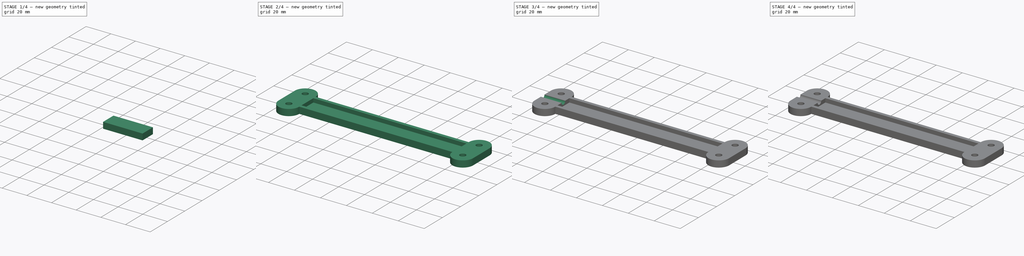
[diagram: build sequence overview — one tinted view per stage of 4, left to right]
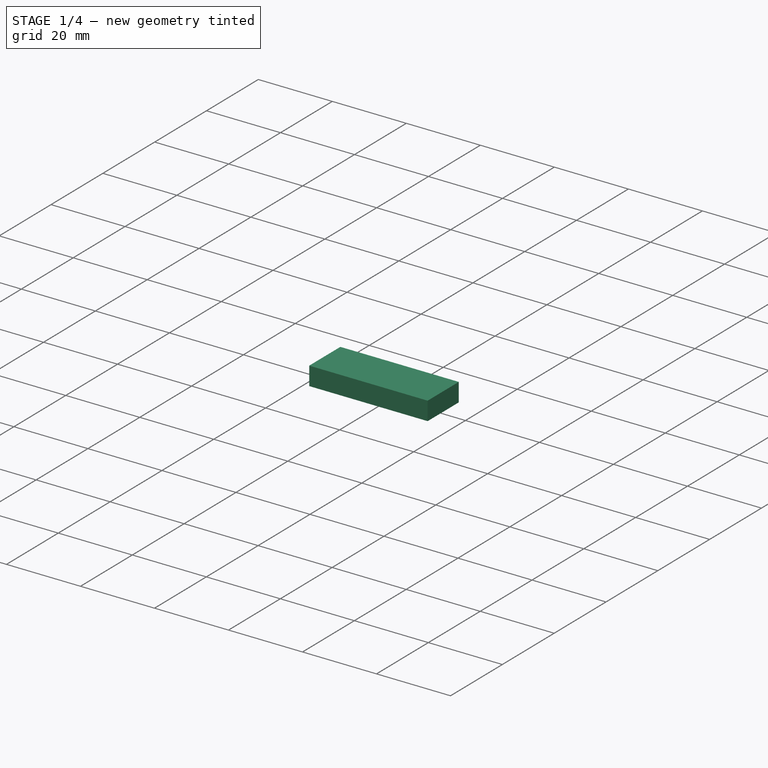
[diagram: stage 1 of 4 — iso view after this stage's code; geometry added in this stage tinted green]
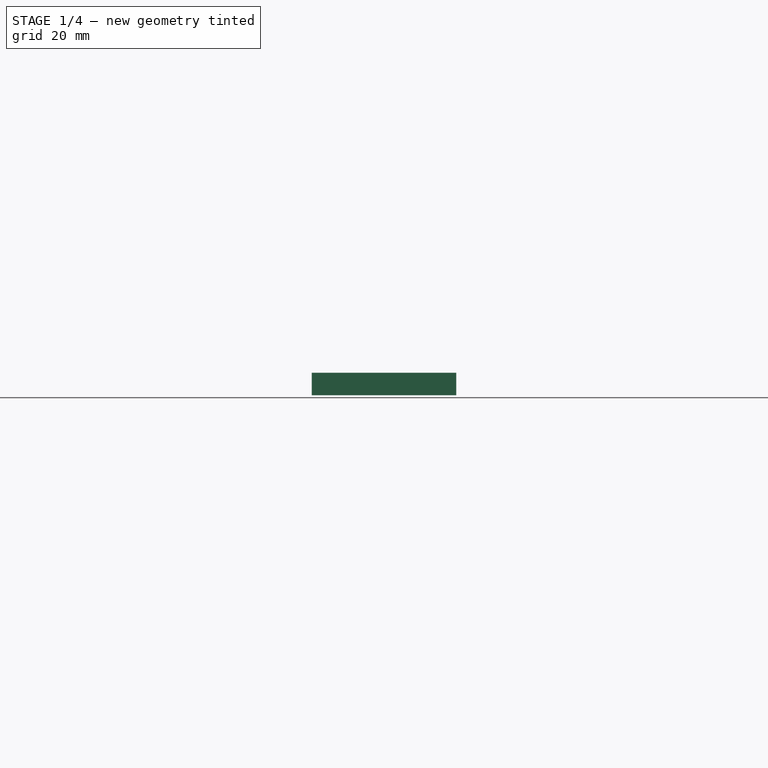
[diagram: stage 1 of 4 — front view after this stage's code; geometry added in this stage tinted green]
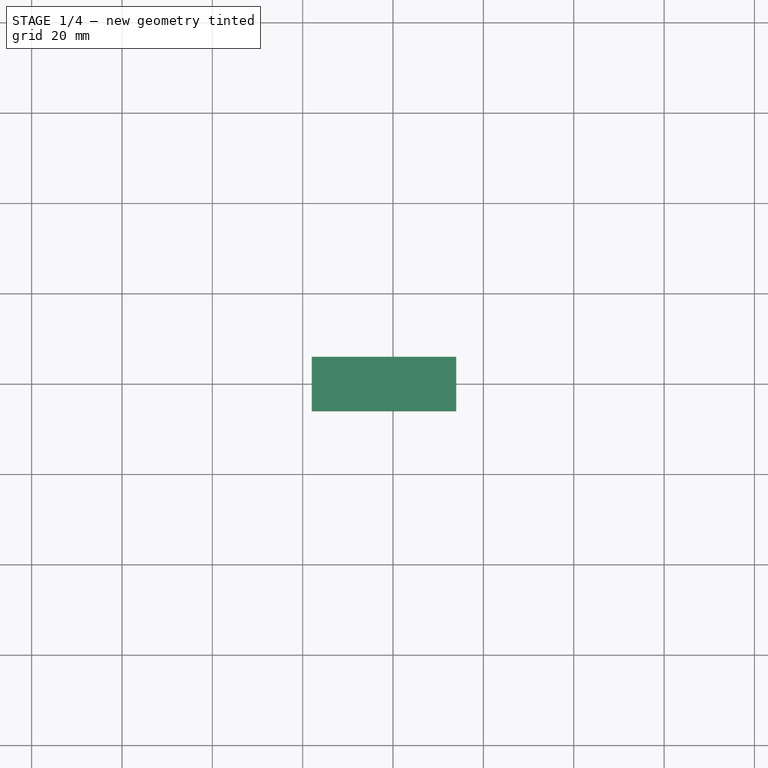
[diagram: stage 1 of 4 — top view after this stage's code; geometry added in this stage tinted green]
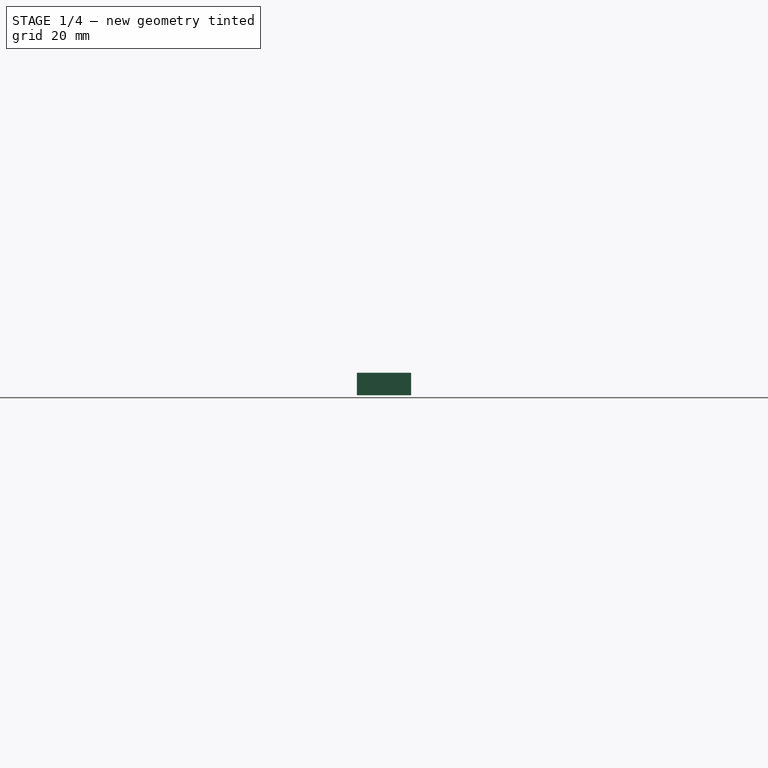
[diagram: stage 1 of 4 — right view after this stage's code; geometry added in this stage tinted green]
FCSTD DOCUMENT  (FreeCAD 0.21R33668 +26 (Git))
Label: presbiLED
License: All rights reserved
LicenseURL: http://en.wikipedia.org/wiki/All_rights_reserved
objects: Sketcher::SketchObject×6, PartDesign::Body×5, PartDesign::Pad×3, PartDesign::SubShapeBinder×3, PartDesign::Pocket×3, PartDesign::FeatureBase×2, PartDesign::Chamfer×1
note: 30 computed .brp shape members not serialized (recipe doc carries the construction recipe); baked Part::Feature solids carry a one-line shape summary decoded from their .brp

FEATURE [Sketcher::SketchObject] Sketch
  FullyConstrained = true
  MapMode = 5
  Support = -> [XY_Plane]
  sketch-geometry (4):
    g0: LineSegment StartX=-36 StartY=6 StartZ=0 EndX=36 EndY=6 EndZ=0
    g1: LineSegment StartX=36 StartY=6 StartZ=0 EndX=36 EndY=-6 EndZ=0
    g2: LineSegment StartX=36 StartY=-6 StartZ=0 EndX=-36 EndY=-6 EndZ=0
    g3: LineSegment StartX=-36 StartY=-6 StartZ=0 EndX=-36 EndY=6 EndZ=0
  constraints (11):
    c: Coincident(g0,g1)
    c: Coincident(g1,g2)
    c: Coincident(g2,g3)
    c: Coincident(g3,g0)
    c: Horizontal(g0)
    c: Horizontal(g2)
    c: Vertical(g1)
    c: Vertical(g3)
    c: DistanceY(g1,g1) = 12
    c: DistanceX(g2,g2) = 72
    c: Symmetric(g1,g0,g-1)
FEATURE [PartDesign::Pad] Pad
  Direction = (0,0,1)
  Length = 2
  Length2 = 10
  Profile = -> Sketch
  ReferenceAxis = -> Sketch [N_Axis]
  Type = 0
FEATURE [PartDesign::Body] Body  label="LED strip"
  Group = -> [Sketch,Pad]
  Origin = -> Origin
  Placement = pos=(0,0,2) rot=(0,0,1;0rad)
  Tip = -> Pad
FEATURE [PartDesign::SubShapeBinder] Binder
  BindCopyOnChange = 0
  BindMode = 0
  ClaimChildren = false
  Context = -> Body001 [Binder.]
  Fuse = false
  MakeFace = true
  OffsetFill = false
  OffsetIntersection = false
  OffsetJoinType = 0
  OffsetOpenResult = false
  PartialLoad = false
  Relative = true
  Support = -> [Body[Pad.Face6]]
  _Version = 2
FEATURE [Sketcher::SketchObject] Sketch001
  ExternalGeometry = -> [Binder]
  FullyConstrained = true
  MapMode = 5
  Support = -> [XY_Plane001]
  sketch-geometry (4):
    g0: LineSegment StartX=-46 StartY=6 StartZ=0 EndX=-78 EndY=6 EndZ=0
    g1: LineSegment StartX=-78 StartY=6 StartZ=0 EndX=-78 EndY=-6 EndZ=0
    g2: LineSegment StartX=-78 StartY=-6 StartZ=0 EndX=-46 EndY=-6 EndZ=0
    g3: LineSegment StartX=-46 StartY=-6 StartZ=0 EndX=-46 EndY=6 EndZ=0
  constraints (12):
    c: Coincident(g0,g1)
    c: Coincident(g1,g2)
    c: Coincident(g2,g3)
    c: Coincident(g3,g0)
    c: Horizontal(g0)
    c: Horizontal(g2)
    c: Vertical(g1)
    c: Vertical(g3)
    c: Horizontal(g0,g-3)
    c: Horizontal(g2,g-3)
    c: DistanceX(g2,g2) = 32
    c: DistanceX(g0,g-3) = 10
FEATURE [PartDesign::Pad] Pad001
  Direction = (0,0,1)
  Length = 5
  Length2 = 10
  Profile = -> Sketch001
  ReferenceAxis = -> Sketch001 [N_Axis]
  Type = 0
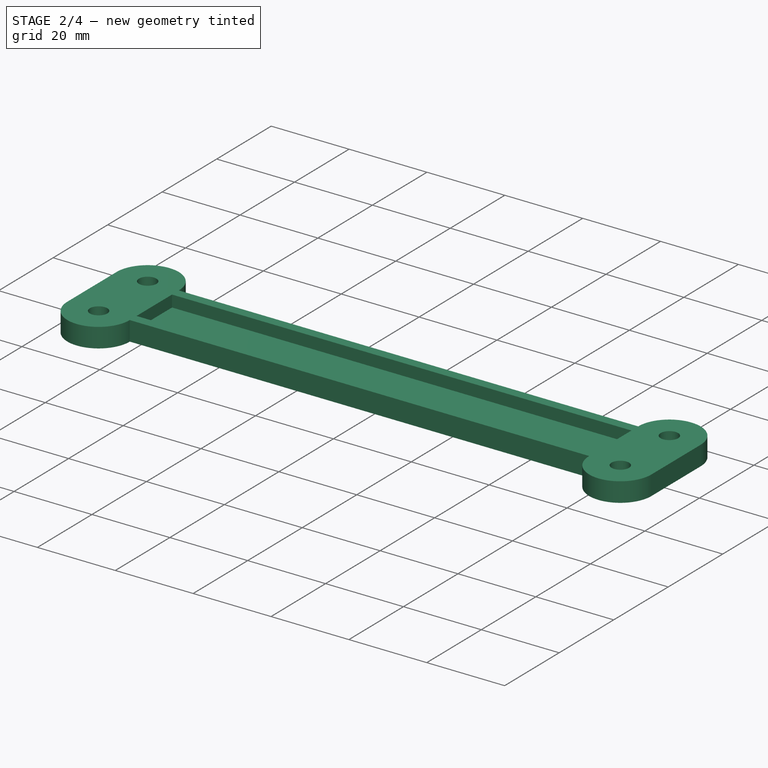
[diagram: stage 2 of 4 — iso view after this stage's code; geometry added in this stage tinted green]
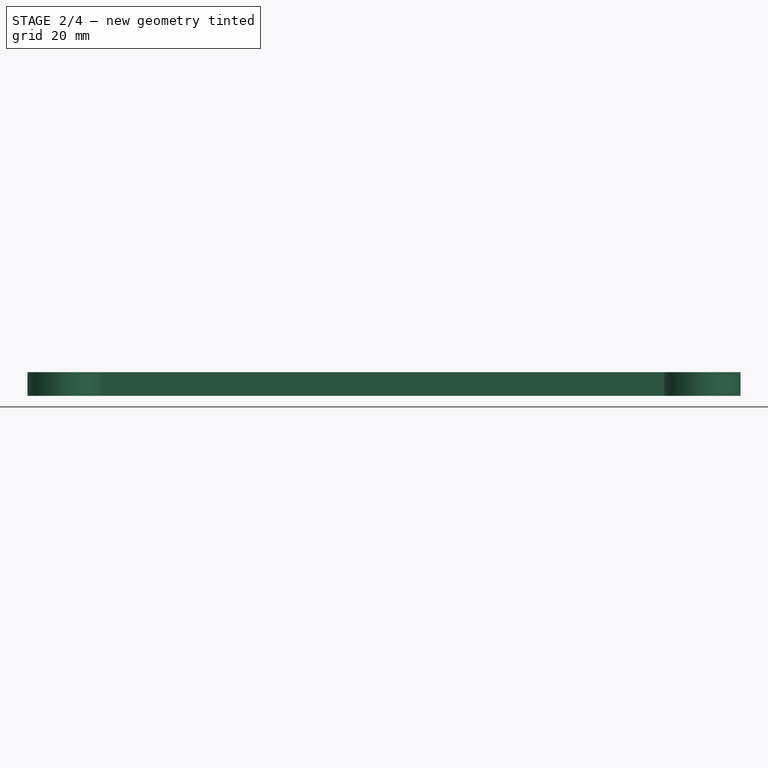
[diagram: stage 2 of 4 — front view after this stage's code; geometry added in this stage tinted green]
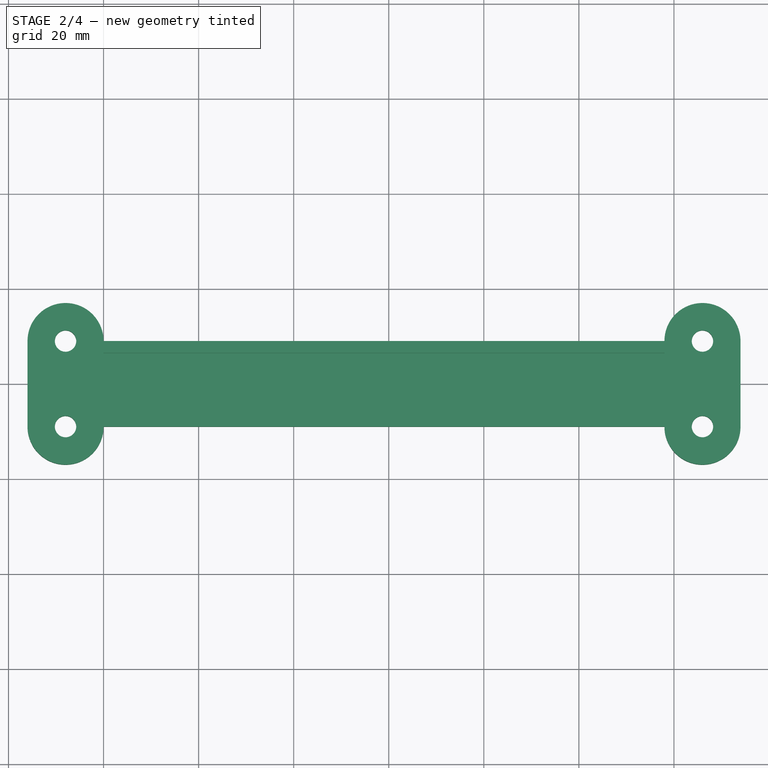
[diagram: stage 2 of 4 — top view after this stage's code; geometry added in this stage tinted green]
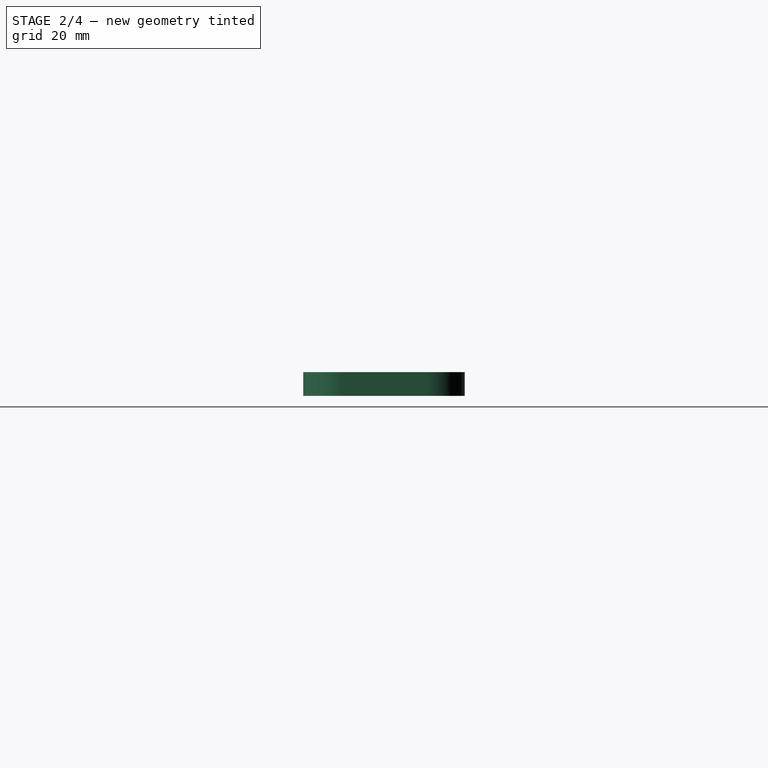
[diagram: stage 2 of 4 — right view after this stage's code; geometry added in this stage tinted green]
FEATURE [PartDesign::Body] Body001  label="Controller"
  Group = -> [Sketch001,Binder,Pad001]
  Origin = -> Origin001
  Placement = pos=(0,0,2) rot=(0,0,1;0rad)
  Tip = -> Pad001
FEATURE [PartDesign::SubShapeBinder] Binder001
  BindCopyOnChange = 0
  BindMode = 0
  ClaimChildren = false
  Context = -> Body002 [Binder001.]
  Fuse = false
  MakeFace = true
  OffsetFill = false
  OffsetIntersection = false
  OffsetJoinType = 0
  OffsetOpenResult = false
  PartialLoad = false
  Relative = true
  Support = -> [Body001[Pad001.Face5]]
  _Version = 2
FEATURE [PartDesign::SubShapeBinder] Binder002
  BindCopyOnChange = 0
  BindMode = 0
  ClaimChildren = false
  Context = -> Body002 [Binder002.]
  Fuse = false
  MakeFace = true
  OffsetFill = false
  OffsetIntersection = false
  OffsetJoinType = 0
  OffsetOpenResult = false
  PartialLoad = false
  Relative = true
  Support = -> [Body[Pad.Face5]]
  _Version = 2
FEATURE [Sketcher::SketchObject] Sketch002
  ExternalGeometry = -> [Binder001,Binder002]
  FullyConstrained = true
  MapMode = 5
  Support = -> [XY_Plane002]
  sketch-geometry (12):
    g0: LineSegment StartX=-80 StartY=9 StartZ=0 EndX=38 EndY=9 EndZ=0
    g1: LineSegment StartX=38 StartY=-9 StartZ=0 EndX=-80 EndY=-9 EndZ=0
    g2: ArcOfCircle CenterX=-88 CenterY=9 CenterZ=0 NormalX=0 NormalY=0 NormalZ=1 AngleXU=0 Radius=8 StartAngle=-2.9496e-12 EndAngle=3.14159
    g3: ArcOfCircle CenterX=-88 CenterY=-9 CenterZ=0 NormalX=0 NormalY=0 NormalZ=1 AngleXU=0 Radius=8 StartAngle=3.14159 EndAngle=6.28319
    g4: LineSegment StartX=-96 StartY=-9 StartZ=0 EndX=-96 EndY=9 EndZ=0
    g5: Circle CenterX=-88 CenterY=9 CenterZ=0 NormalX=0 NormalY=0 NormalZ=1 AngleXU=0 Radius=2.25
    g6: Circle CenterX=-88 CenterY=-9 CenterZ=0 NormalX=0 NormalY=0 NormalZ=1 AngleXU=0 Radius=2.25
    g7: ArcOfCircle CenterX=46 CenterY=-9 CenterZ=0 NormalX=0 NormalY=0 NormalZ=1 AngleXU=0 Radius=8 StartAngle=3.14159 EndAngle=6.28319
    g8: LineSegment StartX=54 StartY=-9 StartZ=0 EndX=54 EndY=9 EndZ=0
    g9: ArcOfCircle CenterX=46 CenterY=9 CenterZ=0 NormalX=0 NormalY=0 NormalZ=1 AngleXU=0 Radius=8 StartAngle=-1.048e-13 EndAngle=3.14159
    g10: Circle CenterX=46 CenterY=9 CenterZ=0 NormalX=0 NormalY=0 NormalZ=1 AngleXU=0 Radius=2.25
    g11: Circle CenterX=46 CenterY=-9 CenterZ=0 NormalX=0 NormalY=0 NormalZ=1 AngleXU=0 Radius=2.25
  constraints (30):
    c: Horizontal(g0)
    c: Horizontal(g1)
    c: DistanceY(g-4,g0) = 3
    c: DistanceY(g1,g-4) = 3
    c: DistanceX(g-4,g0) = 2
    c: Equal(g1,g0)
    c: Coincident(g2,g0)
    c: Perpendicular(g1,g3) = 4.71239
    c: Vertical(g4)
    c: Perpendicular(g2,g0)
    c: Tangent(g3,g4) = 1.5708
    c: Coincident(g5,g2)
    c: Coincident(g6,g3)
    c: Equal(g6,g5)
    c: DistanceX(g0,g-3) = 2
    c: Diameter(g5) = 4.5
    c: Perpendicular(g1,g7) = 1.5708
    c: Tangent(g7,g8) = -1.5708
    c: Tangent(g8,g9) = -1.5708
    c: Coincident(g9,g0)
    c: Coincident(g10,g9)
    c: Coincident(g11,g7)
    c: Equal(g11,g10)
    c: Equal(g10,g5)
    c: Equal(g9,g2)
    c: Equal(g3,g2)
    c: Vertical(g8)
    c: Diameter(g9) = 16
    c: Perpendicular(g9,g0)
    c: Tangent(g4,g2) = 1.5708
FEATURE [PartDesign::Pad] Pad002
  Direction = (0,0,1)
  Length = 5
  Length2 = 10
  Profile = -> Sketch002
  ReferenceAxis = -> Sketch002 [N_Axis]
  Type = 0
FEATURE [Sketcher::SketchObject] Sketch003
  ExternalGeometry = -> [Pad002]
  FullyConstrained = true
  MapMode = 5
  Placement = pos=(0,0,5) rot=(0,0,1;0rad)
  Support = -> [Pad002]
  sketch-geometry (4):
    g0: LineSegment StartX=-80 StartY=6.5 StartZ=0 EndX=38 EndY=6.5 EndZ=0
    g1: LineSegment StartX=38 StartY=6.5 StartZ=0 EndX=38 EndY=-6.5 EndZ=0
    g2: LineSegment StartX=38 StartY=-6.5 StartZ=0 EndX=-80 EndY=-6.5 EndZ=0
    g3: LineSegment StartX=-80 StartY=-6.5 StartZ=0 EndX=-80 EndY=6.5 EndZ=0
  constraints (11):
    c: Coincident(g0,g1)
    c: Coincident(g1,g2)
    c: Coincident(g2,g3)
    c: Coincident(g3,g0)
    c: Horizontal(g0)
    c: Horizontal(g2)
    c: Vertical(g1)
    c: Vertical(g0,g-3)
    c: Vertical(g-3,g0)
    c: Symmetric(g0,g2,g-1)
    c: DistanceY(g1,g1) = 13
FEATURE [PartDesign::Pocket] Pocket
  BaseFeature = -> Pad002
  Direction = (0,0,-1)
  Length = 3
  Length2 = 5
  Profile = -> Sketch003
  ReferenceAxis = -> Sketch003 [N_Axis]
  Type = 0
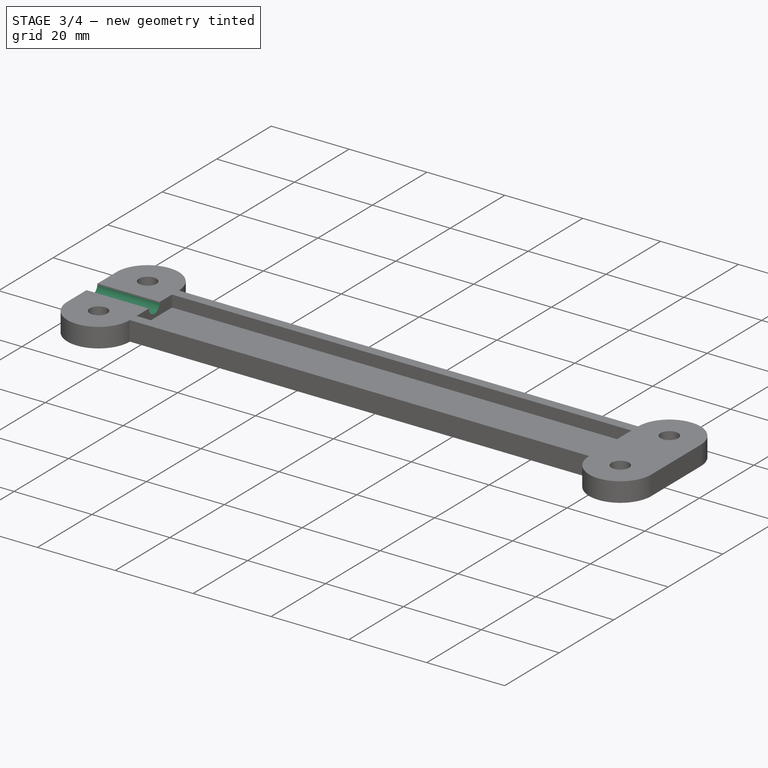
[diagram: stage 3 of 4 — iso view after this stage's code; geometry added in this stage tinted green]
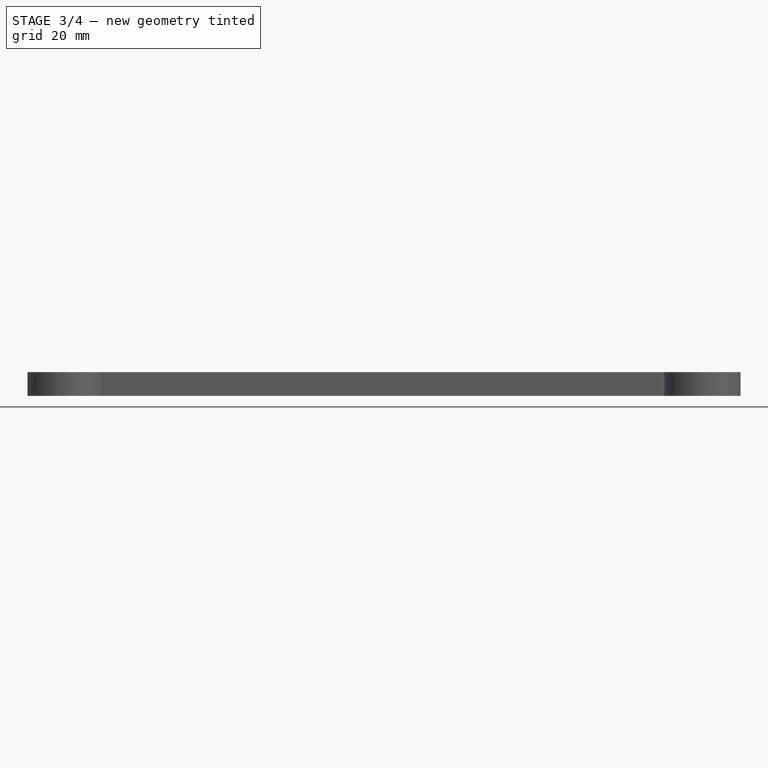
[diagram: stage 3 of 4 — front view after this stage's code; geometry added in this stage tinted green]
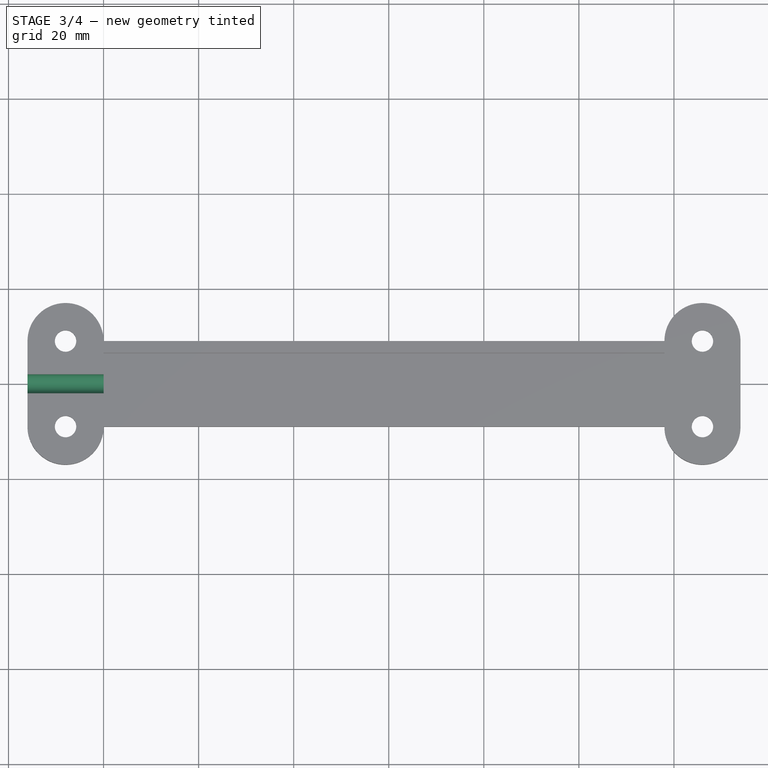
[diagram: stage 3 of 4 — top view after this stage's code; geometry added in this stage tinted green]
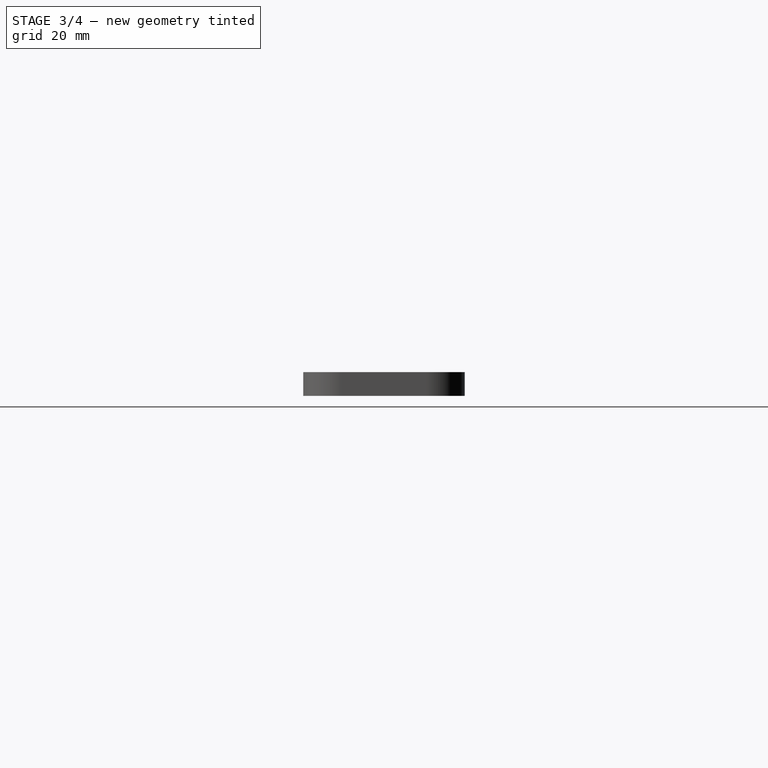
[diagram: stage 3 of 4 — right view after this stage's code; geometry added in this stage tinted green]
FEATURE [Sketcher::SketchObject] Sketch004
  ExternalGeometry = -> [Pocket]
  FullyConstrained = true
  MapMode = 5
  Placement = pos=(-96,0,0) rot=(0.57735,-0.57735,-0.57735;2.0944rad)
  Support = -> [Pocket]
  sketch-geometry (1):
    g0: Circle CenterX=0 CenterY=5 CenterZ=0 NormalX=0 NormalY=0 NormalZ=1 AngleXU=0 Radius=2
  constraints (3):
    c: PointOnObject(g0,g-3)
    c: PointOnObject(g0,g-2)
    c: Diameter(g0) = 4
FEATURE [PartDesign::Pocket] Pocket001
  BaseFeature = -> Pocket
  Direction = (1,0,0)
  Length = 5
  Length2 = 5
  Profile = -> Sketch004
  ReferenceAxis = -> Sketch004 [N_Axis]
  Type = 2
FEATURE [PartDesign::FeatureBase] Clone001
  BaseFeature = -> Body002
FEATURE [PartDesign::Body] Body003  label="sopra"
  Group = -> [Clone,Chamfer]
  Origin = -> Origin003
  Placement = pos=(0,1.3e-15,11) rot=(1,0,0;3.14159rad)
  Tip = -> Chamfer
FEATURE [Sketcher::SketchObject] Sketch005
  ExternalGeometry = -> [Clone001]
  FullyConstrained = true
  MapMode = 5
  Placement = pos=(0,0,0) rot=(1,0,0;3.14159rad)
  Support = -> [Clone001]
  sketch-geometry (28):
    g0: LineSegment StartX=-84.5359 StartY=7 StartZ=0 EndX=-84.5359 EndY=11 EndZ=0
    g1: LineSegment StartX=-84.5359 StartY=11 StartZ=0 EndX=-88 EndY=13 EndZ=0
    g2: LineSegment StartX=-88 StartY=13 StartZ=0 EndX=-91.4641 EndY=11 EndZ=0
    g3: LineSegment StartX=-91.4641 StartY=11 StartZ=0 EndX=-91.4641 EndY=7 EndZ=0
    g4: LineSegment StartX=-91.4641 StartY=7 StartZ=0 EndX=-88 EndY=5 EndZ=0
    g5: LineSegment StartX=-88 StartY=5 StartZ=0 EndX=-84.5359 EndY=7 EndZ=0
    g6: Circle CenterX=-88 CenterY=9 CenterZ=0 NormalX=0 NormalY=0 NormalZ=1 AngleXU=0 Radius=4
    g7: LineSegment StartX=-84.5359 StartY=-11 StartZ=0 EndX=-84.5359 EndY=-7 EndZ=0
    g8: LineSegment StartX=-84.5359 StartY=-7 StartZ=0 EndX=-88 EndY=-5 EndZ=0
    g9: LineSegment StartX=-88 StartY=-5 StartZ=0 EndX=-91.4641 EndY=-7 EndZ=0
    g10: LineSegment StartX=-91.4641 StartY=-7 StartZ=0 EndX=-91.4641 EndY=-11 EndZ=0
    g11: LineSegment StartX=-91.4641 StartY=-11 StartZ=0 EndX=-88 EndY=-13 EndZ=0
    g12: LineSegment StartX=-88 StartY=-13 StartZ=0 EndX=-84.5359 EndY=-11 EndZ=0
    g13: Circle CenterX=-88 CenterY=-9 CenterZ=0 NormalX=0 NormalY=0 NormalZ=1 AngleXU=0 Radius=4
    g14: LineSegment StartX=46 StartY=5 StartZ=0 EndX=49.4641 EndY=7 EndZ=0
    g15: LineSegment StartX=49.4641 StartY=7 StartZ=0 EndX=49.4641 EndY=11 EndZ=0
    g16: LineSegment StartX=49.4641 StartY=11 StartZ=0 EndX=46 EndY=13 EndZ=0
    g17: LineSegment StartX=46 StartY=13 StartZ=0 EndX=42.5359 EndY=11 EndZ=0
    g18: LineSegment StartX=42.5359 StartY=11 StartZ=0 EndX=42.5359 EndY=7 EndZ=0
    g19: LineSegment StartX=42.5359 StartY=7 StartZ=0 EndX=46 EndY=5 EndZ=0
    g20: Circle CenterX=46 CenterY=9 CenterZ=0 NormalX=0 NormalY=0 NormalZ=1 AngleXU=0 Radius=4
    g21: LineSegment StartX=49.4641 StartY=-11 StartZ=0 EndX=49.4641 EndY=-7 EndZ=0
    g22: LineSegment StartX=49.4641 StartY=-7 StartZ=0 EndX=46 EndY=-5 EndZ=0
    g23: LineSegment StartX=46 StartY=-5 StartZ=0 EndX=42.5359 EndY=-7 EndZ=0
    g24: LineSegment StartX=42.5359 StartY=-7 StartZ=0 EndX=42.5359 EndY=-11 EndZ=0
    g25: LineSegment StartX=42.5359 StartY=-11 StartZ=0 EndX=46 EndY=-13 EndZ=0
    g26: LineSegment StartX=46 StartY=-13 StartZ=0 EndX=49.4641 EndY=-11 EndZ=0
    g27: Circle CenterX=46 CenterY=-9 CenterZ=0 NormalX=0 NormalY=0 NormalZ=1 AngleXU=0 Radius=4
  constraints (64):
    c: Coincident(g0,g1)
    c: Coincident(g1,g2)
    c: Coincident(g2,g3)
    c: Coincident(g3,g4)
    c: Coincident(g4,g5)
    c: Coincident(g5,g0)
    c: Equal(g0, g1-g5) x5
    c: PointOnObject(g0,g6)
    c: PointOnObject(g1,g6)
    c: PointOnObject(g2,g6)
    c: PointOnObject(g3,g6)
    c: PointOnObject(g4,g6)
    c: PointOnObject(g5,g6)
    c: Coincident(g6,g-3)
    c: Coincident(g7,g8)
    c: Coincident(g8,g9)
    c: Coincident(g9,g10)
    c: Coincident(g10,g11)
    c: Coincident(g11,g12)
    c: Coincident(g12,g7)
    c: Equal(g7, g8-g12) x5
    c: PointOnObject(g7,g13)
    c: PointOnObject(g8,g13)
    c: PointOnObject(g9,g13)
    c: PointOnObject(g10,g13)
    c: PointOnObject(g11,g13)
    c: PointOnObject(g12,g13)
    c: Coincident(g13,g-4)
    c: Coincident(g14,g15)
    c: Coincident(g15,g16)
    c: Coincident(g16,g17)
    c: Coincident(g17,g18)
    c: Coincident(g18,g19)
    c: Coincident(g19,g14)
    c: Equal(g14, g15-g19) x5
    c: PointOnObject(g14,g20)
    c: PointOnObject(g15,g20)
    c: PointOnObject(g16,g20)
    c: PointOnObject(g17,g20)
    c: PointOnObject(g18,g20)
    c: PointOnObject(g19,g20)
    c: Coincident(g20,g-5)
    c: Coincident(g21,g22)
    c: Coincident(g22,g23)
    c: Coincident(g23,g24)
    c: Coincident(g24,g25)
    c: Coincident(g25,g26)
    c: Coincident(g26,g21)
    c: Equal(g21, g22-g26) x5
    c: PointOnObject(g21,g27)
    c: PointOnObject(g22,g27)
    c: PointOnObject(g23,g27)
    c: PointOnObject(g24,g27)
    c: PointOnObject(g25,g27)
    c: PointOnObject(g26,g27)
    c: Coincident(g27,g-6)
    c: Vertical(g24)
    c: Vertical(g18)
    c: Vertical(g0)
    c: Vertical(g7)
    c: Equal(g27,g20)
    c: Diameter(g20) = 8
    c: Equal(g20,g6)
    c: Equal(g6,g13)
FEATURE [PartDesign::Pocket] Pocket002
  BaseFeature = -> Clone001
  Direction = (0,0,1)
  Length = 2
  Length2 = 5
  Profile = -> Sketch005
  ReferenceAxis = -> Sketch005 [N_Axis]
  Type = 0
FEATURE [PartDesign::Body] Body004  label="sotto"
  Group = -> [Clone001,Sketch005,Pocket002]
  Origin = -> Origin004
  Tip = -> Pocket002
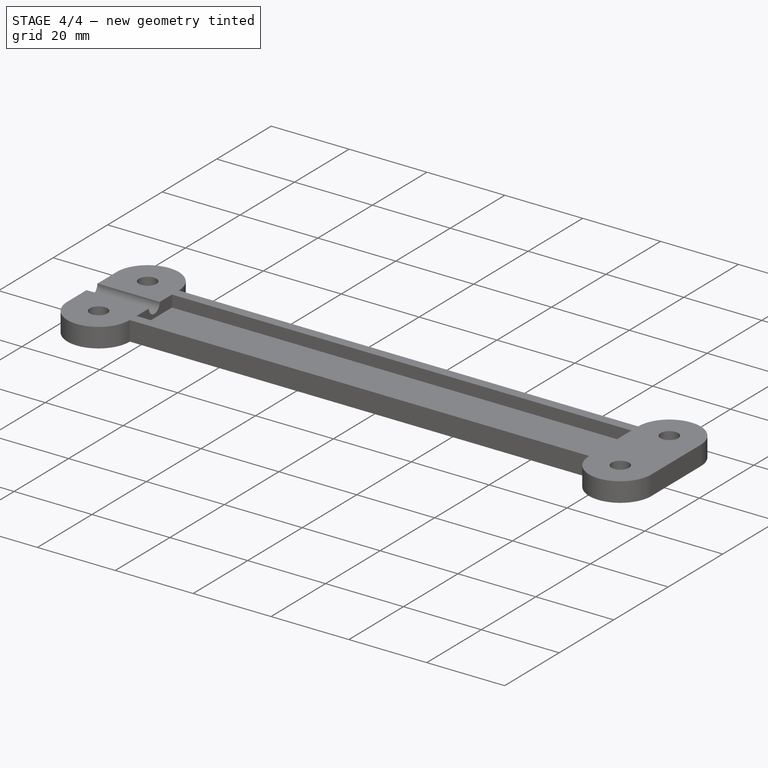
[diagram: stage 4 of 4 — iso view after this stage's code; geometry added in this stage tinted green]
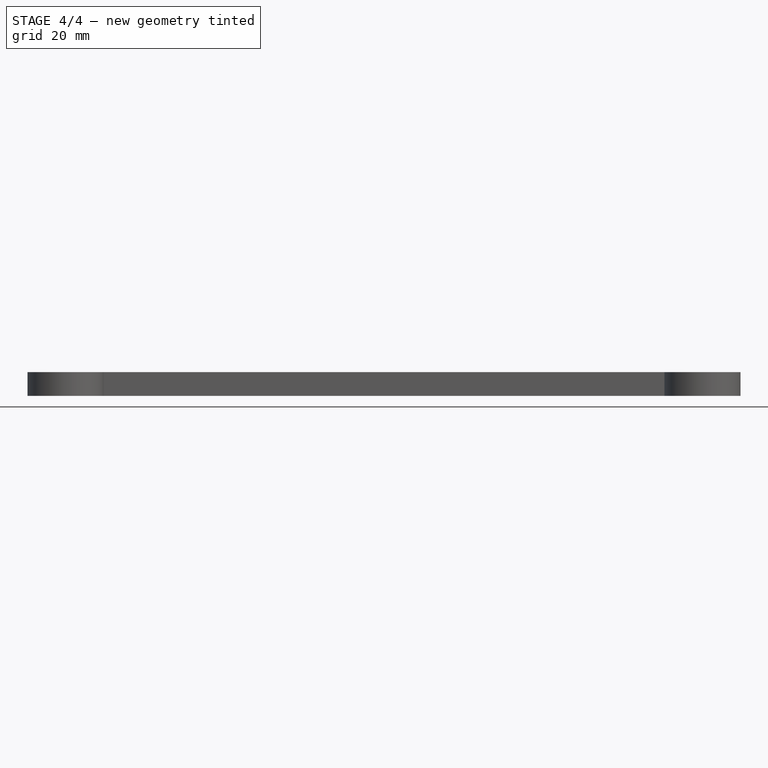
[diagram: stage 4 of 4 — front view after this stage's code; geometry added in this stage tinted green]
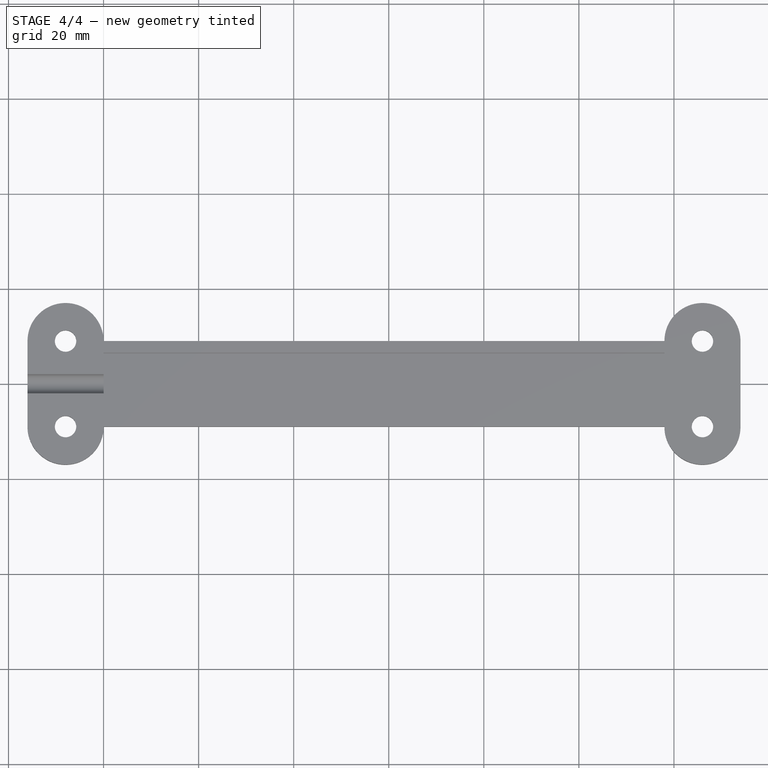
[diagram: stage 4 of 4 — top view after this stage's code; geometry added in this stage tinted green]
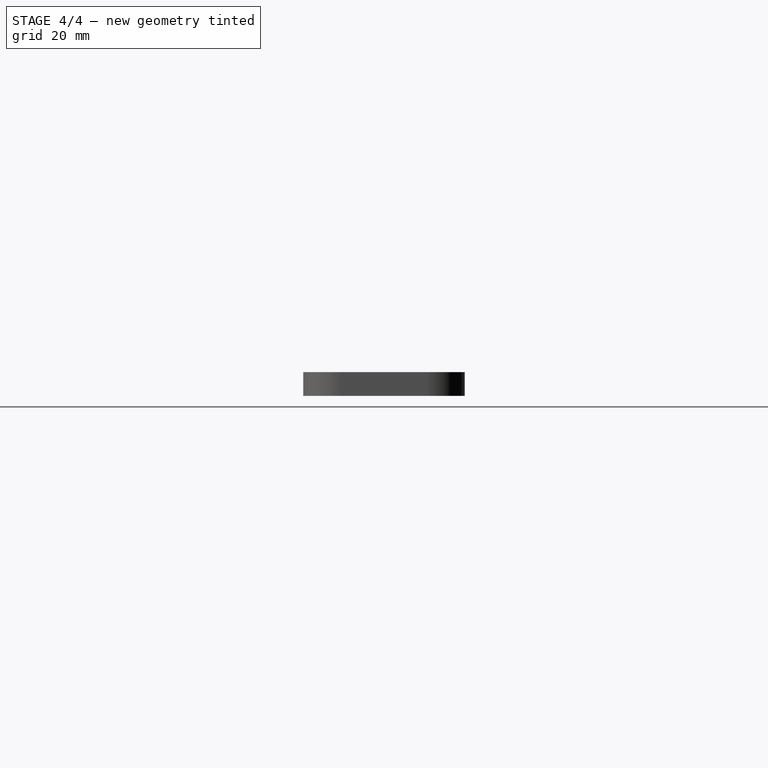
[diagram: stage 4 of 4 — right view after this stage's code; geometry added in this stage tinted green]
FEATURE [PartDesign::Body] Body002  label="base"
  Group = -> [Binder001,Binder002,Sketch002,Pad002,Sketch003,Pocket,Sketch004,Pocket001]
  Origin = -> Origin002
  Tip = -> Pocket001
FEATURE [PartDesign::FeatureBase] Clone
  BaseFeature = -> Body002
FEATURE [PartDesign::Chamfer] Chamfer
  Angle = 45
  Base = -> Clone [Edge16,Edge17,Edge14,Edge15]
  BaseFeature = -> Clone
  ChamferType = 0
  FlipDirection = false
  Size = 1
  Size2 = 1
  SupportTransform = false
  UseAllEdges = false
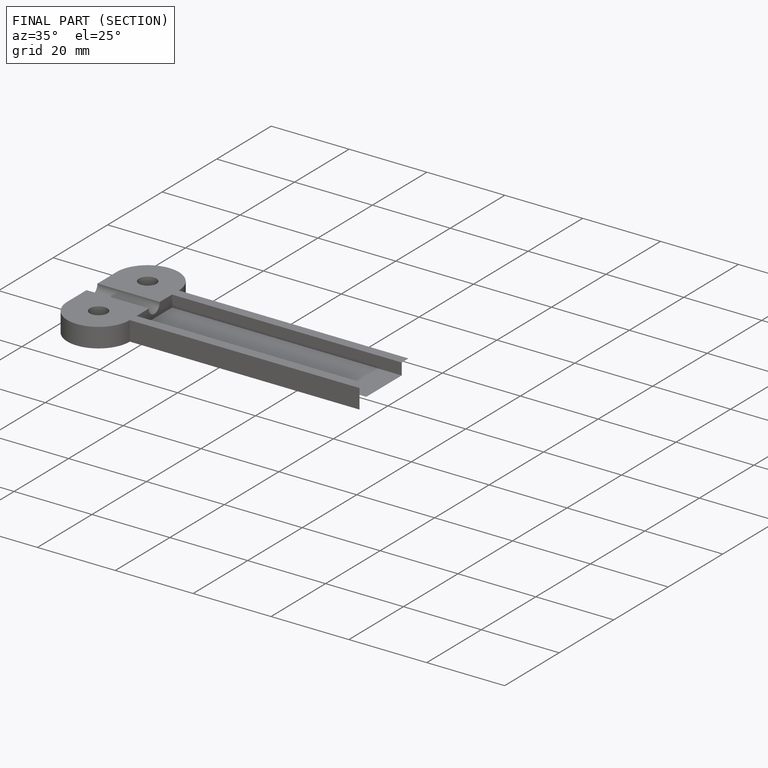
[diagram: finished part — half-section view (interior)]
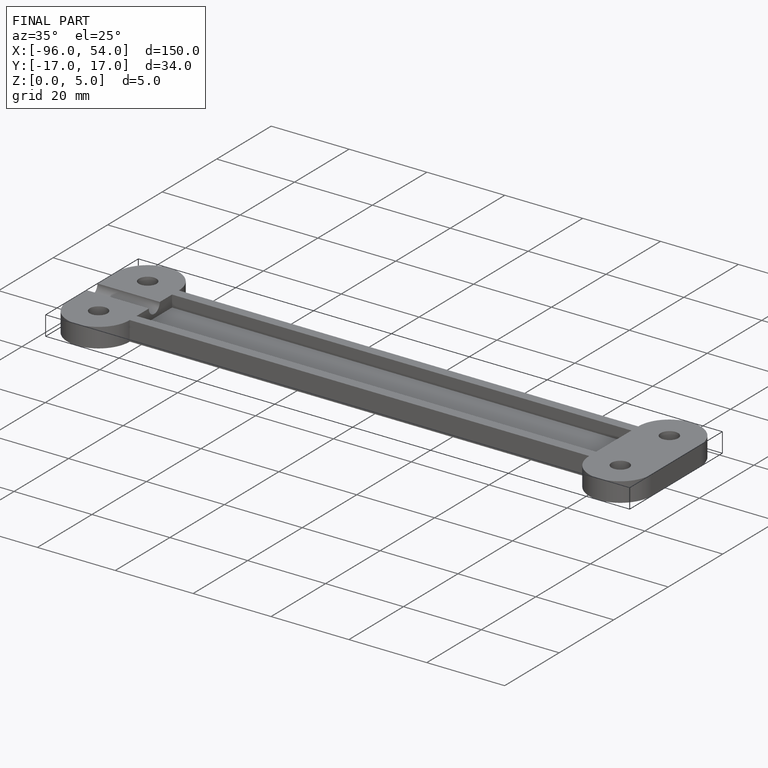
[diagram: finished part — iso view with bounding-box wireframe]
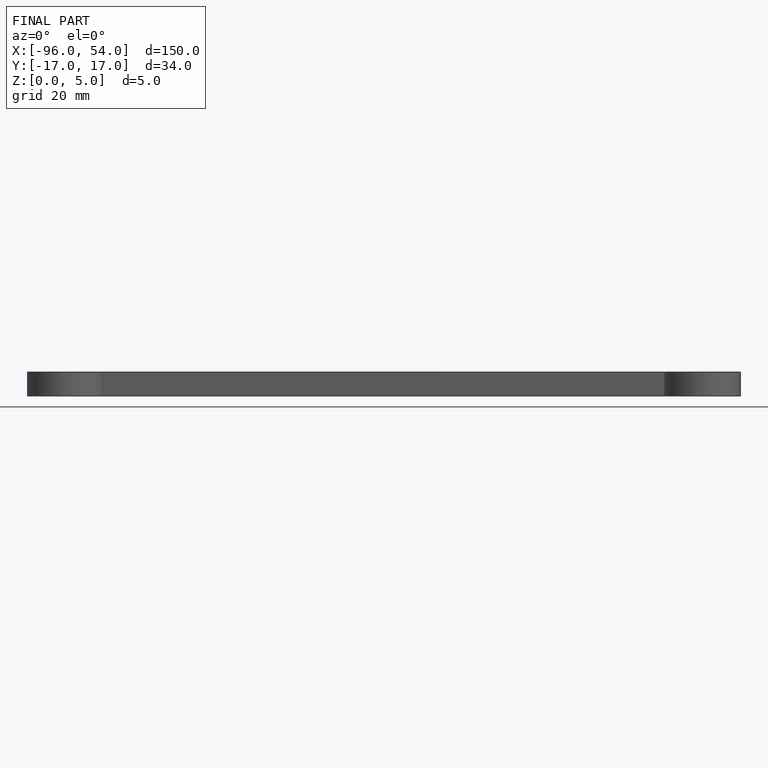
[diagram: finished part — front view with bounding-box wireframe]
